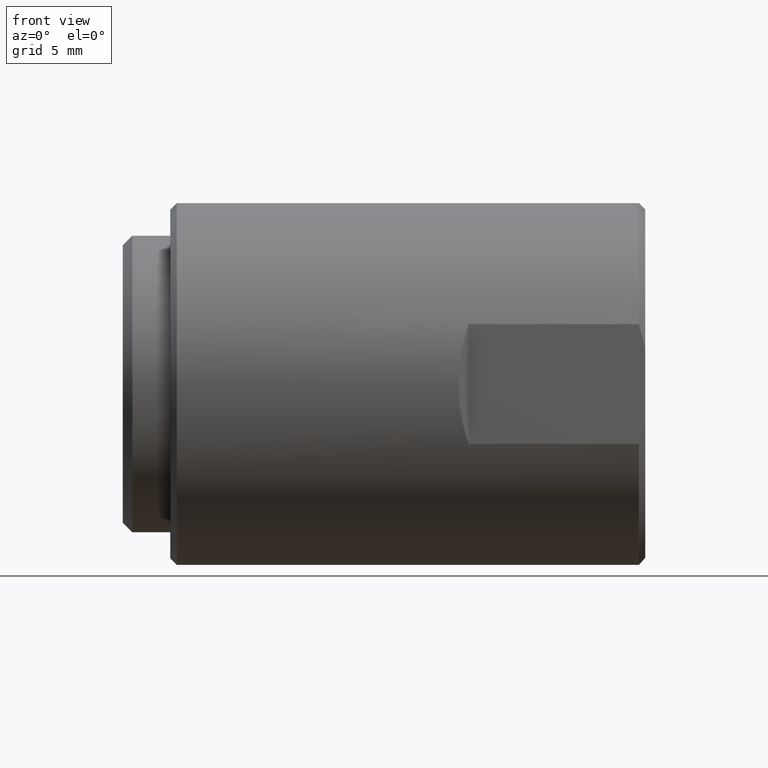
[diagram: clean part render]
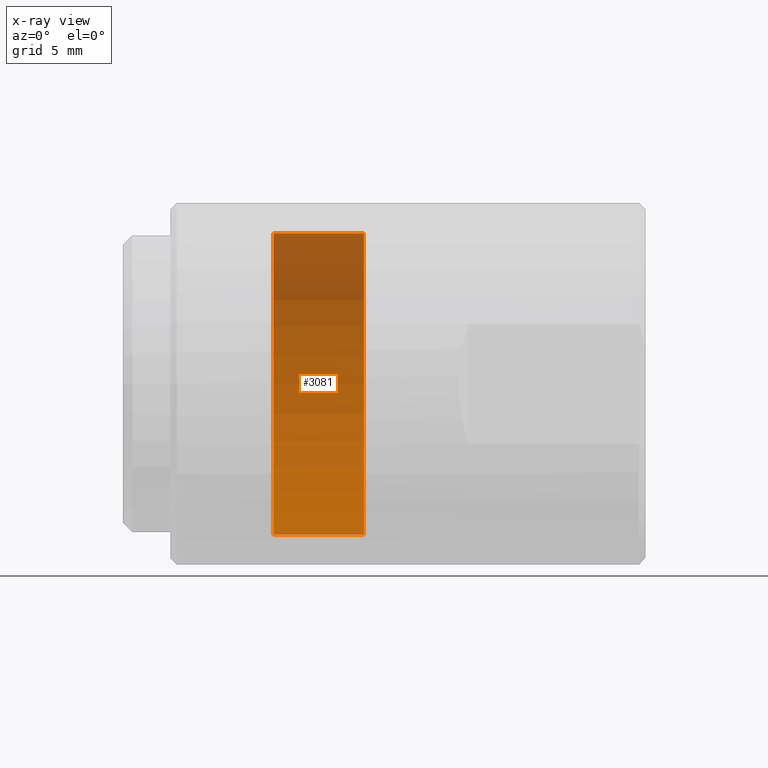
[diagram: x-ray — body ghosted, one internal face saturated and labeled with its STEP entity id]
A machine part, front view, then the same camera in x-ray: the body is ghosted and one INTERNAL B-rep face — a face not visible from any outside direction — is saturated and labeled: STEP entity #3081.
In plain terms, the highlighted cylindrical surface (partial cylindrical patch) has radius 11.8936 mm, axis along (-1, -0, -0).
Its self-contained STEP definition (entity closure, byte-faithful):
#200 = DIRECTION ( 'NONE',  ( 0.0000000000000000000, 0.0000000000000000000, 1.000000000000000000 ) ) ;
#1411 = CARTESIAN_POINT ( 'NONE',  ( 0.3750000000000000555, 5.734408637007481329E-17, -0.4682500000000000551 ) ) ;
#1605 = CARTESIAN_POINT ( 'NONE',  ( 0.3750000000000000555, 0.0000000000000000000, 0.4682500000000000551 ) ) ;
#1758 = EDGE_CURVE ( 'NONE', #4427, #7179, #6257, .T. ) ;
#1972 = VERTEX_POINT ( 'NONE', #2647 ) ;
#2565 = CARTESIAN_POINT ( 'NONE',  ( 0.09400000000000004186, 0.0000000000000000000, 0.0000000000000000000 ) ) ;
#2647 = CARTESIAN_POINT ( 'NONE',  ( 0.09400000000000004186, 5.734408637007481329E-17, -0.4682500000000000551 ) ) ;
#2778 = EDGE_CURVE ( 'NONE', #6658, #1972, #3795, .T. ) ;
#3081 = ADVANCED_FACE ( 'NONE', ( #11244 ), #11365, .F. ) ;
#3795 = CIRCLE ( 'NONE', #5519, 0.4682500000000000551 ) ;
#3898 = DIRECTION ( 'NONE',  ( -1.000000000000000000, -0.0000000000000000000, -0.0000000000000000000 ) ) ;
#4058 = EDGE_CURVE ( 'NONE', #7179, #1972, #7101, .T. ) ;
#4234 = ORIENTED_EDGE ( 'NONE', *, *, #4058, .F. ) ;
#4427 = VERTEX_POINT ( 'NONE', #1605 ) ;
#4486 = VECTOR ( 'NONE', #5463, 39.37007874015748143 ) ;
#4593 = EDGE_LOOP ( 'NONE', ( #4234, #10988, #8425, #9830 ) ) ;
#5463 = DIRECTION ( 'NONE',  ( -1.000000000000000000, -0.0000000000000000000, -0.0000000000000000000 ) ) ;
#5519 = AXIS2_PLACEMENT_3D ( 'NONE', #2565, #8728, #10474 ) ;
#5700 = DIRECTION ( 'NONE',  ( 0.0000000000000000000, 0.0000000000000000000, 1.000000000000000000 ) ) ;
#5930 = CARTESIAN_POINT ( 'NONE',  ( 0.0000000000000000000, 0.0000000000000000000, 0.4682500000000000551 ) ) ;
#6257 = CIRCLE ( 'NONE', #9349, 0.4682500000000000551 ) ;
#6518 = CARTESIAN_POINT ( 'NONE',  ( 0.3750000000000000555, 0.0000000000000000000, 0.0000000000000000000 ) ) ;
#6604 = CARTESIAN_POINT ( 'NONE',  ( 0.0000000000000000000, 0.0000000000000000000, 0.0000000000000000000 ) ) ;
#6658 = VERTEX_POINT ( 'NONE', #10269 ) ;
#6721 = LINE ( 'NONE', #5930, #7231 ) ;
#7101 = LINE ( 'NONE', #7278, #4486 ) ;
#7179 = VERTEX_POINT ( 'NONE', #1411 ) ;
#7231 = VECTOR ( 'NONE', #11419, 39.37007874015748143 ) ;
#7278 = CARTESIAN_POINT ( 'NONE',  ( 0.0000000000000000000, 5.734408637007481329E-17, -0.4682500000000000551 ) ) ;
#7545 = DIRECTION ( 'NONE',  ( -1.000000000000000000, -0.0000000000000000000, -0.0000000000000000000 ) ) ;
#7937 = AXIS2_PLACEMENT_3D ( 'NONE', #6604, #3898, #5700 ) ;
#8425 = ORIENTED_EDGE ( 'NONE', *, *, #10642, .T. ) ;
#8728 = DIRECTION ( 'NONE',  ( -1.000000000000000000, -0.0000000000000000000, -0.0000000000000000000 ) ) ;
#9349 = AXIS2_PLACEMENT_3D ( 'NONE', #6518, #7545, #200 ) ;
#9830 = ORIENTED_EDGE ( 'NONE', *, *, #2778, .T. ) ;
#10269 = CARTESIAN_POINT ( 'NONE',  ( 0.09400000000000004186, 0.0000000000000000000, 0.4682500000000000551 ) ) ;
#10474 = DIRECTION ( 'NONE',  ( 0.0000000000000000000, 0.0000000000000000000, 1.000000000000000000 ) ) ;
#10642 = EDGE_CURVE ( 'NONE', #4427, #6658, #6721, .T. ) ;
#10988 = ORIENTED_EDGE ( 'NONE', *, *, #1758, .F. ) ;
#11244 = FACE_OUTER_BOUND ( 'NONE', #4593, .T. ) ;
#11365 = CYLINDRICAL_SURFACE ( 'NONE', #7937, 0.4682500000000000551 ) ;
#11419 = DIRECTION ( 'NONE',  ( -1.000000000000000000, -0.0000000000000000000, -0.0000000000000000000 ) ) ;